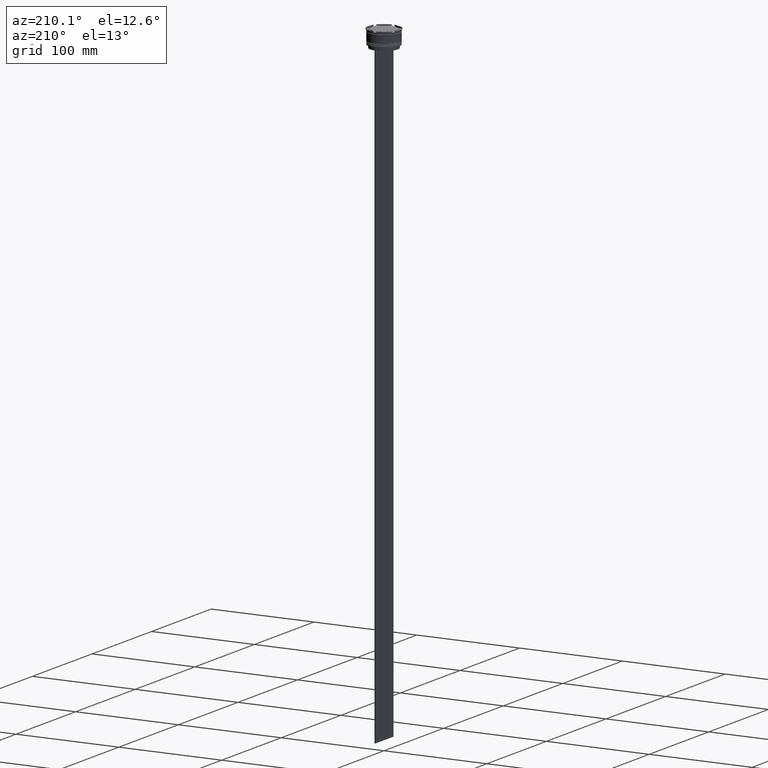
[diagram: clean part render]
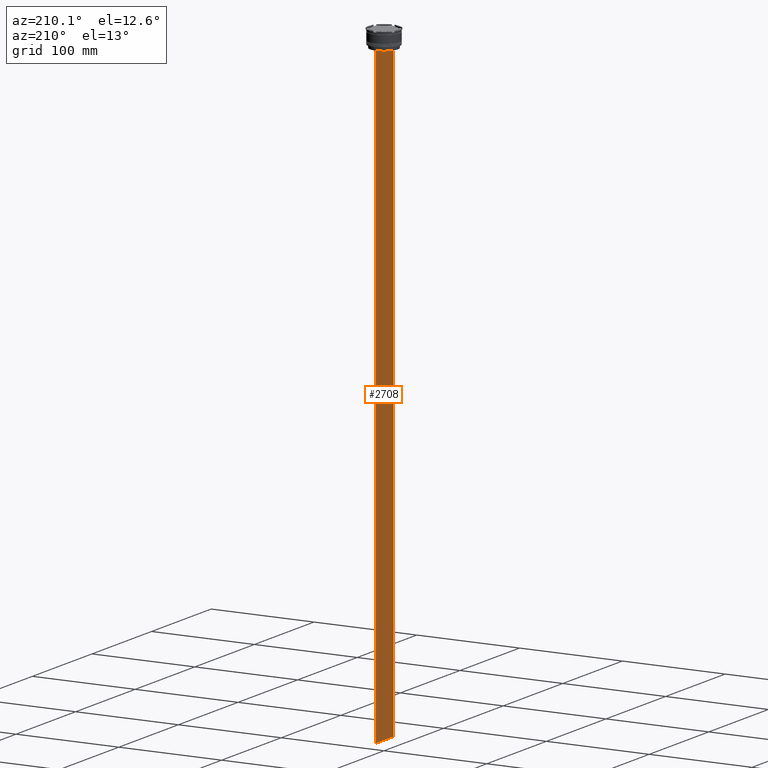
[diagram: same view with one face highlighted and labeled with its STEP entity id]
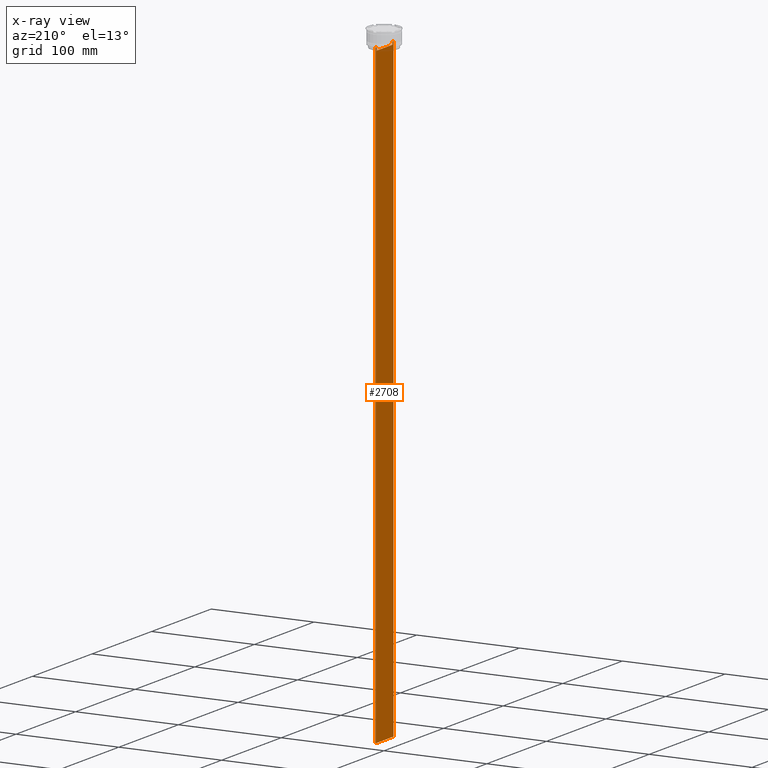
[diagram: x-ray of the same camera — body ghosted, the highlighted face saturated]
A machine part, auxiliary view. The second image highlights one B-rep face of the part: STEP entity #2708.
The next image is the same camera in x-ray: the body ghosted, the highlighted face saturated — about 0% of this face is hidden behind the body in this view.
In plain terms, the highlighted planar face has unit normal (-1, 0, 0).
Its self-contained STEP definition (entity closure, byte-faithful):
#11 = CARTESIAN_POINT ( 'NONE',  ( -0.4999999999999998890, -15.00000000000000355, 16.01666203960726165 ) ) ;
#17 = EDGE_CURVE ( 'NONE', #247, #2471, #700, .T. ) ;
#50 = VERTEX_POINT ( 'NONE', #761 ) ;
#80 = DIRECTION ( 'NONE',  ( 0.000000000000000000, -1.000000000000000000, 0.000000000000000000 ) ) ;
#94 = EDGE_CURVE ( 'NONE', #2332, #2883, #1845, .T. ) ;
#107 = ORIENTED_EDGE ( 'NONE', *, *, #2065, .F. ) ;
#247 = VERTEX_POINT ( 'NONE', #613 ) ;
#275 = CARTESIAN_POINT ( 'NONE',  ( -0.4999999999999998890, -15.00000000000000355, -14.00000000000000178 ) ) ;
#448 = DIRECTION ( 'NONE',  ( -1.000000000000000000, 0.000000000000000000, 0.000000000000000000 ) ) ;
#469 = ORIENTED_EDGE ( 'NONE', *, *, #17, .F. ) ;
#481 = B_SPLINE_CURVE_WITH_KNOTS ( 'NONE', 3,
 ( #2298, #2045, #730, #1624 ),
 .UNSPECIFIED., .F., .F.,
 ( 4, 4 ),
 ( 0.02359665025569773755, 0.02430399458637444096 ),
 .UNSPECIFIED. ) ;
#507 = VECTOR ( 'NONE', #2321, 1000.000000000000000 ) ;
#514 = CARTESIAN_POINT ( 'NONE',  ( -0.4999999999999998890, 13.39066839257847263, -14.49999999999999822 ) ) ;
#611 = VERTEX_POINT ( 'NONE', #2805 ) ;
#613 = CARTESIAN_POINT ( 'NONE',  ( -0.4999999999999998890, -13.39066839257847263, -14.49999999999999822 ) ) ;
#700 = B_SPLINE_CURVE_WITH_KNOTS ( 'NONE', 3,
 ( #2484, #1339, #1114, #1782 ),
 .UNSPECIFIED., .F., .F.,
 ( 4, 4 ),
 ( 0.06160226316123729867, 0.06231007364084071437 ),
 .UNSPECIFIED. ) ;
#708 = CARTESIAN_POINT ( 'NONE',  ( -0.4999999999999998890, 14.99999999999999645, -614.0000000000000000 ) ) ;
#723 = DIRECTION ( 'NONE',  ( 0.000000000000000000, -1.000000000000000000, 0.000000000000000000 ) ) ;
#730 = CARTESIAN_POINT ( 'NONE',  ( -0.4999999999999998890, 13.55744911232272543, -14.33333542444994002 ) ) ;
#745 = ORIENTED_EDGE ( 'NONE', *, *, #1203, .F. ) ;
#752 = LINE ( 'NONE', #2331, #2449 ) ;
#761 = CARTESIAN_POINT ( 'NONE',  ( -0.4999999999999998890, -13.39066839257847086, -17.00000000000000000 ) ) ;
#769 = CARTESIAN_POINT ( 'NONE',  ( -0.4999999999999998890, -15.00000000000000355, -14.00000000000000178 ) ) ;
#786 = VERTEX_POINT ( 'NONE', #1580 ) ;
#787 = EDGE_CURVE ( 'NONE', #2471, #2332, #2727, .T. ) ;
#800 = ORIENTED_EDGE ( 'NONE', *, *, #830, .F. ) ;
#809 = AXIS2_PLACEMENT_3D ( 'NONE', #11, #448, #1753 ) ;
#830 = EDGE_CURVE ( 'NONE', #1608, #611, #1768, .T. ) ;
#833 = LINE ( 'NONE', #1962, #2017 ) ;
#850 = VECTOR ( 'NONE', #1276, 1000.000000000000000 ) ;
#898 = DIRECTION ( 'NONE',  ( 0.000000000000000000, 0.000000000000000000, -1.000000000000000000 ) ) ;
#938 = EDGE_CURVE ( 'NONE', #611, #50, #2288, .T. ) ;
#988 = ORIENTED_EDGE ( 'NONE', *, *, #2397, .F. ) ;
#992 = ORIENTED_EDGE ( 'NONE', *, *, #2175, .T. ) ;
#1054 = VERTEX_POINT ( 'NONE', #1159 ) ;
#1107 = DIRECTION ( 'NONE',  ( 0.000000000000000000, -1.000000000000000000, 0.000000000000000000 ) ) ;
#1114 = CARTESIAN_POINT ( 'NONE',  ( -0.4999999999999998890, -13.72422766745777345, -14.16666868242426958 ) ) ;
#1116 = FACE_OUTER_BOUND ( 'NONE', #1711, .T. ) ;
#1154 = VERTEX_POINT ( 'NONE', #2273 ) ;
#1159 = CARTESIAN_POINT ( 'NONE',  ( -0.4999999999999998890, 14.89160837518903513, -14.00000000000000178 ) ) ;
#1184 = CARTESIAN_POINT ( 'NONE',  ( -0.4999999999999998890, 13.40000000000000391, -17.00000000000000000 ) ) ;
#1203 = EDGE_CURVE ( 'NONE', #1154, #1054, #2095, .T. ) ;
#1217 = CARTESIAN_POINT ( 'NONE',  ( -0.4999999999999998890, -14.89160837518903513, -14.00000000000000178 ) ) ;
#1226 = CARTESIAN_POINT ( 'NONE',  ( -0.4999999999999998890, -15.00000000000000355, -14.00000000000000178 ) ) ;
#1276 = DIRECTION ( 'NONE',  ( 0.000000000000000000, 0.000000000000000000, -1.000000000000000000 ) ) ;
#1286 = VECTOR ( 'NONE', #1107, 1000.000000000000000 ) ;
#1287 = EDGE_CURVE ( 'NONE', #786, #1608, #481, .T. ) ;
#1339 = CARTESIAN_POINT ( 'NONE',  ( -0.4999999999999998890, -13.55744911241550277, -14.33333542435722485 ) ) ;
#1363 = ORIENTED_EDGE ( 'NONE', *, *, #787, .F. ) ;
#1377 = ORIENTED_EDGE ( 'NONE', *, *, #2694, .F. ) ;
#1421 = VECTOR ( 'NONE', #2874, 1000.000000000000000 ) ;
#1489 = ORIENTED_EDGE ( 'NONE', *, *, #94, .F. ) ;
#1580 = CARTESIAN_POINT ( 'NONE',  ( -0.4999999999999998890, 13.89100428334828230, -14.00000000000000178 ) ) ;
#1604 = VECTOR ( 'NONE', #898, 1000.000000000000000 ) ;
#1608 = VERTEX_POINT ( 'NONE', #514 ) ;
#1624 = CARTESIAN_POINT ( 'NONE',  ( -0.4999999999999998890, 13.39066839257847263, -14.49999999999999822 ) ) ;
#1711 = EDGE_LOOP ( 'NONE', ( #2299, #988, #745, #992, #1377, #2487, #1489, #1363, #469, #107, #2849, #800 ) ) ;
#1724 = LINE ( 'NONE', #2802, #2115 ) ;
#1728 = LINE ( 'NONE', #2605, #850 ) ;
#1753 = DIRECTION ( 'NONE',  ( 0.000000000000000000, 0.000000000000000000, 1.000000000000000000 ) ) ;
#1765 = LINE ( 'NONE', #1974, #1421 ) ;
#1768 = LINE ( 'NONE', #2231, #1604 ) ;
#1782 = CARTESIAN_POINT ( 'NONE',  ( -0.4999999999999998890, -13.89100428334828230, -14.00000000000000178 ) ) ;
#1845 = LINE ( 'NONE', #2305, #2498 ) ;
#1908 = CARTESIAN_POINT ( 'NONE',  ( -0.4999999999999998890, -13.89100428334828230, -14.00000000000000178 ) ) ;
#1962 = CARTESIAN_POINT ( 'NONE',  ( -0.4999999999999998890, -13.39066839257847263, 0.000000000000000000 ) ) ;
#1974 = CARTESIAN_POINT ( 'NONE',  ( -0.4999999999999998890, -15.00000000000000355, -614.0000000000000000 ) ) ;
#2003 = PLANE ( 'NONE',  #809 ) ;
#2017 = VECTOR ( 'NONE', #2160, 1000.000000000000000 ) ;
#2045 = CARTESIAN_POINT ( 'NONE',  ( -0.4999999999999998890, 13.72422766736833566, -14.16666868251365052 ) ) ;
#2065 = EDGE_CURVE ( 'NONE', #50, #247, #833, .T. ) ;
#2095 = LINE ( 'NONE', #769, #507 ) ;
#2115 = VECTOR ( 'NONE', #2623, 1000.000000000000000 ) ;
#2160 = DIRECTION ( 'NONE',  ( -0.000000000000000000, -0.000000000000000000, 1.000000000000000000 ) ) ;
#2167 = VECTOR ( 'NONE', #80, 1000.000000000000000 ) ;
#2175 = EDGE_CURVE ( 'NONE', #1154, #2211, #1728, .T. ) ;
#2211 = VERTEX_POINT ( 'NONE', #708 ) ;
#2231 = CARTESIAN_POINT ( 'NONE',  ( -0.4999999999999998890, 13.39066839257847263, 0.000000000000000000 ) ) ;
#2273 = CARTESIAN_POINT ( 'NONE',  ( -0.4999999999999998890, 14.99999999999999645, -14.00000000000000178 ) ) ;
#2288 = LINE ( 'NONE', #1184, #2167 ) ;
#2298 = CARTESIAN_POINT ( 'NONE',  ( -0.4999999999999998890, 13.89100428334828230, -14.00000000000000178 ) ) ;
#2299 = ORIENTED_EDGE ( 'NONE', *, *, #1287, .F. ) ;
#2305 = CARTESIAN_POINT ( 'NONE',  ( -0.4999999999999998890, -15.00000000000000355, -14.00000000000000178 ) ) ;
#2321 = DIRECTION ( 'NONE',  ( 0.000000000000000000, -1.000000000000000000, 0.000000000000000000 ) ) ;
#2331 = CARTESIAN_POINT ( 'NONE',  ( -0.4999999999999998890, -15.00000000000000355, -14.00000000000000178 ) ) ;
#2332 = VERTEX_POINT ( 'NONE', #1217 ) ;
#2397 = EDGE_CURVE ( 'NONE', #1054, #786, #752, .T. ) ;
#2449 = VECTOR ( 'NONE', #723, 1000.000000000000000 ) ;
#2471 = VERTEX_POINT ( 'NONE', #1908 ) ;
#2484 = CARTESIAN_POINT ( 'NONE',  ( -0.4999999999999998890, -13.39066839257847263, -14.49999999999999822 ) ) ;
#2487 = ORIENTED_EDGE ( 'NONE', *, *, #2499, .F. ) ;
#2498 = VECTOR ( 'NONE', #2543, 1000.000000000000000 ) ;
#2499 = EDGE_CURVE ( 'NONE', #2883, #2624, #1724, .T. ) ;
#2543 = DIRECTION ( 'NONE',  ( 0.000000000000000000, -1.000000000000000000, 0.000000000000000000 ) ) ;
#2605 = CARTESIAN_POINT ( 'NONE',  ( -0.4999999999999998890, 14.99999999999999645, 16.01666203960726165 ) ) ;
#2623 = DIRECTION ( 'NONE',  ( 0.000000000000000000, 0.000000000000000000, -1.000000000000000000 ) ) ;
#2624 = VERTEX_POINT ( 'NONE', #2639 ) ;
#2639 = CARTESIAN_POINT ( 'NONE',  ( -0.4999999999999998890, -15.00000000000000355, -614.0000000000000000 ) ) ;
#2694 = EDGE_CURVE ( 'NONE', #2624, #2211, #1765, .T. ) ;
#2708 = ADVANCED_FACE ( 'NONE', ( #1116 ), #2003, .T. ) ;
#2727 = LINE ( 'NONE', #275, #1286 ) ;
#2802 = CARTESIAN_POINT ( 'NONE',  ( -0.4999999999999998890, -15.00000000000000355, 16.01666203960726165 ) ) ;
#2805 = CARTESIAN_POINT ( 'NONE',  ( -0.4999999999999998890, 13.39066839257847086, -17.00000000000000000 ) ) ;
#2849 = ORIENTED_EDGE ( 'NONE', *, *, #938, .F. ) ;
#2874 = DIRECTION ( 'NONE',  ( 0.000000000000000000, 1.000000000000000000, 0.000000000000000000 ) ) ;
#2883 = VERTEX_POINT ( 'NONE', #1226 ) ;